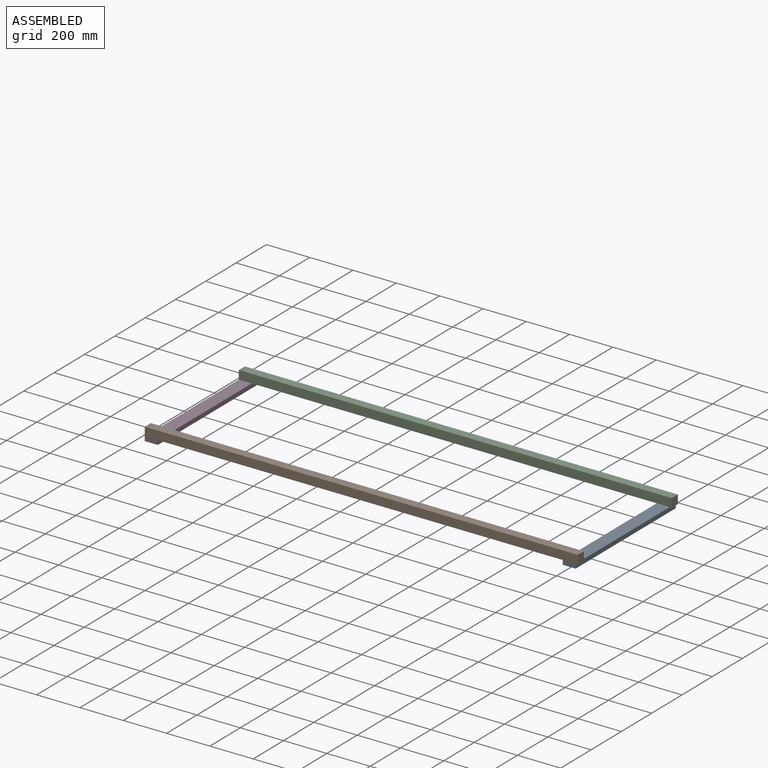
[diagram: assembled view]
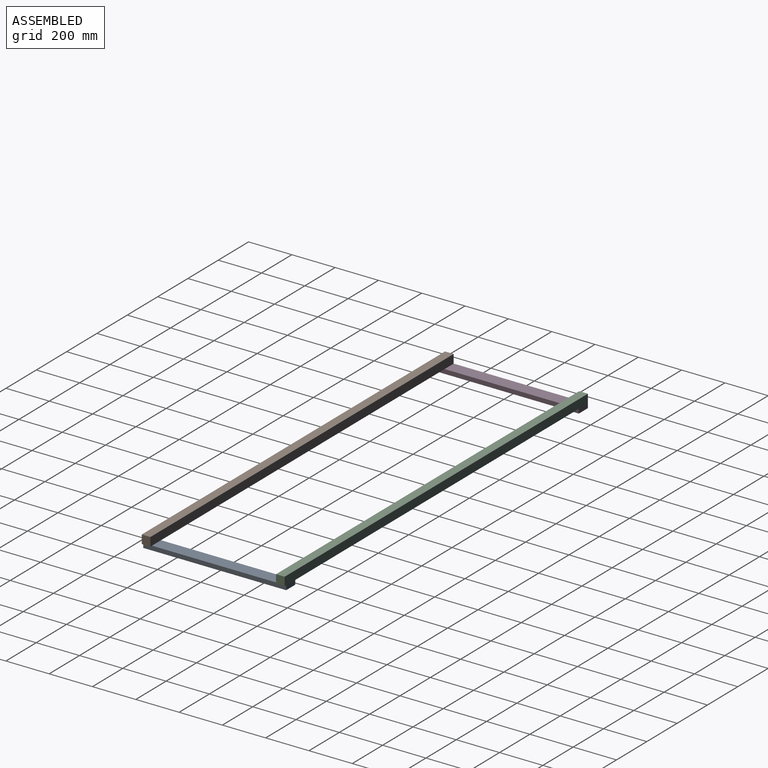
[diagram: assembled view, second angle]
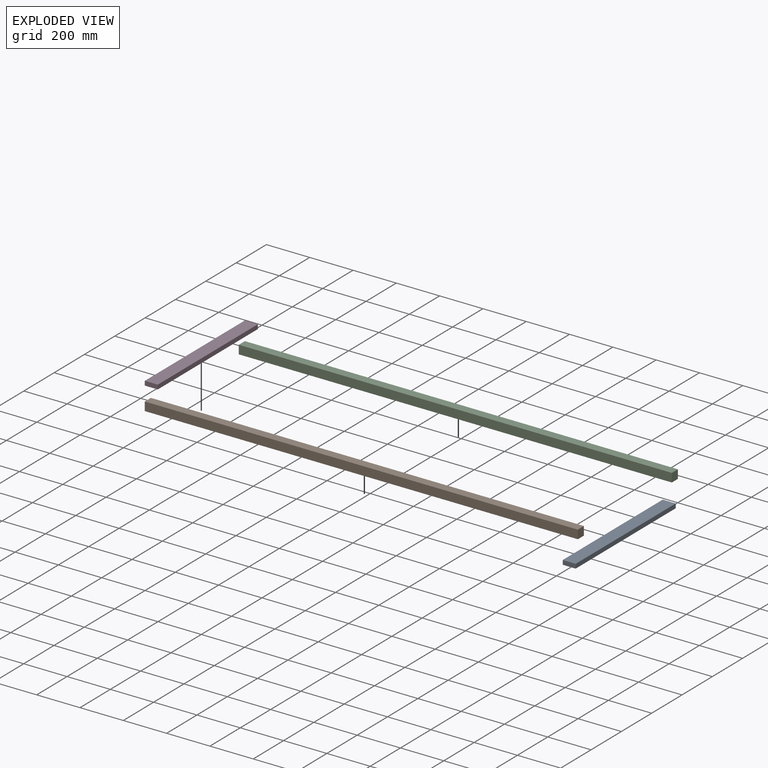
[diagram: exploded view]
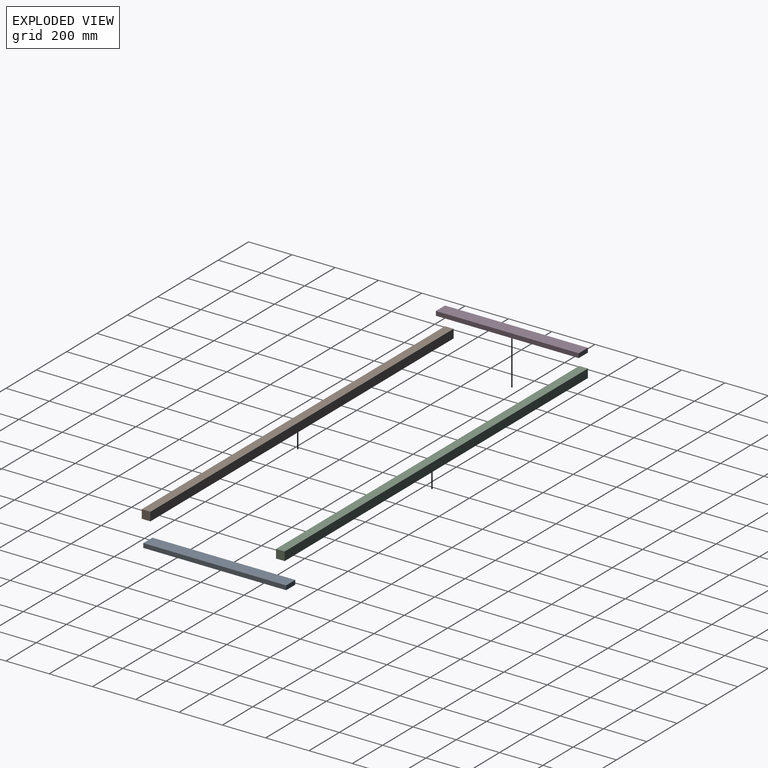
[diagram: exploded view, second angle]
ASSEMBLY  parts=4 mates=3
PART A: 6 faces, bbox 60x660x20 mm
  f0: plane 660x20mm, normal (-1,0,0), area 13200mm2, adj f1,f3,f4,f5
  f1: plane 660x60mm, normal (0,0,-1), area 39600mm2, adj f0,f2,f4,f5
  f2: plane 660x20mm, normal (1,0,0), area 13200mm2, adj f1,f3,f4,f5
  f3: plane 660x60mm, normal (0,0,1), area 39600mm2, adj f0,f2,f4,f5
  f4: plane 60x20mm, normal (0,1,0), area 1200mm2, adj f0,f1,f2,f3
  f5: plane 60x20mm, normal (0,-1,0), area 1200mm2, adj f0,f1,f2,f3
PART B: 6 faces, bbox 40x2000x40 mm
  f0: plane 2000x40mm, normal (-1,0,0), area 80000mm2, adj f1,f3,f4,f5
  f1: plane 2000x40mm, normal (0,0,-1), area 80000mm2, adj f0,f2,f4,f5
  f2: plane 2000x40mm, normal (1,0,0), area 80000mm2, adj f1,f3,f4,f5
  f3: plane 2000x40mm, normal (0,0,1), area 80000mm2, adj f0,f2,f4,f5
  f4: plane 40x40mm, normal (0,1,0), area 1600mm2, adj f0,f1,f2,f3
  f5: plane 40x40mm, normal (0,-1,0), area 1600mm2, adj f0,f1,f2,f3
PART C: same geometry as B
PART D: same geometry as A
PLACE A t=(112.34,-204.66,84.75)mm
PLACE B rot(axis=(0,0,1),90deg) t=(182.34,-204.66,104.75)mm
PLACE C rot(axis=(0,0,1),90deg) t=(182.34,415.34,104.75)mm
PLACE D t=(-1817.66,-204.66,84.75)mm
MATE fastened B.f1 <-> A.f3  axis (0,0,1) through (182.34,-204.66,104.75)mm
MATE fastened C.f1 <-> A.f3  axis (0,0,1) through (182.34,455.34,104.75)mm
MATE fastened D.f3 <-> B.f1  axis (0,0,1) through (-1817.66,-204.66,104.75)mm
